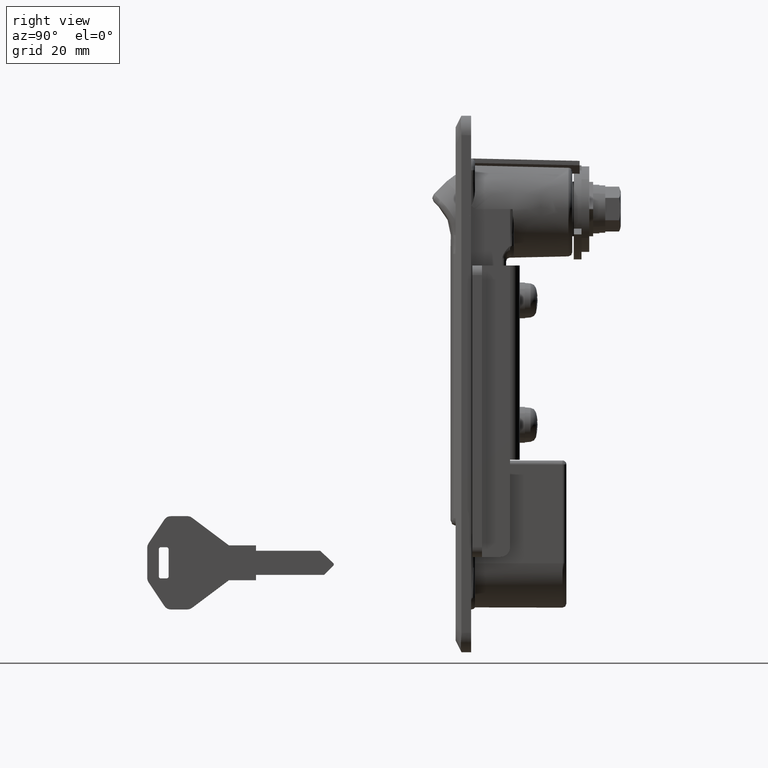
[diagram: clean part render]
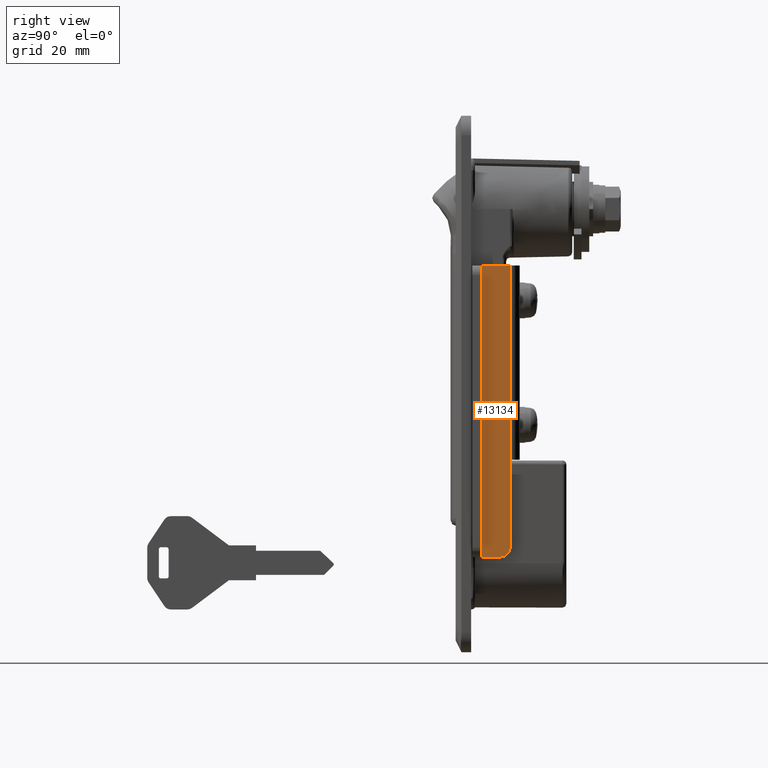
[diagram: same view with one face highlighted and labeled with its STEP entity id]
A machine part, right view. The second image highlights one B-rep face of the part: STEP entity #13134.
In plain terms, the highlighted face is a freeform B-spline surface patch.
Its self-contained STEP definition (entity closure, byte-faithful):
#12487=CARTESIAN_POINT('',(11.500000000000000,-15.500000000000000,-89.500000000000000));
#12488=VERTEX_POINT('',#12487);
#12489=CARTESIAN_POINT('',(14.0,-15.500000000000000,-87.0));
#12490=VERTEX_POINT('',#12489);
#12491=CARTESIAN_POINT('',(11.500000000000000,-15.500000000000000,-89.500000000000000));
#12492=CARTESIAN_POINT('',(11.847785370823960,-15.500000000000000,-89.500452092034067));
#12493=CARTESIAN_POINT('',(12.481449097983360,-15.500000000000000,-89.365510949278359));
#12494=CARTESIAN_POINT('',(13.171786452707600,-15.500000000000080,-88.904244273832617));
#12495=CARTESIAN_POINT('',(13.635454005515010,-15.499999999999950,-88.353034899611671));
#12496=CARTESIAN_POINT('',(13.927160013496451,-15.499999999999851,-87.736280419871065));
#12497=CARTESIAN_POINT('',(14.000098776672781,-15.500000000000210,-87.245443440579407));
#12498=CARTESIAN_POINT('',(14.0,-15.500000000000000,-87.0));
#12499=B_SPLINE_CURVE_WITH_KNOTS('',3,(#12491,#12492,#12493,#12494,#12495,#12496,#12497,#12498),.UNSPECIFIED.,.F.,.U.,(4,1,1,1,1,4),(0.000000307271683,1.043135946012944,1.902227440175011,2.454423626520331,3.190762531668670,3.927089360864137),.UNSPECIFIED.);
#12500=EDGE_CURVE('',#12488,#12490,#12499,.T.);
#12535=CARTESIAN_POINT('',(14.0,-15.500000000000000,-64.500000000000000));
#12536=VERTEX_POINT('',#12535);
#12537=CARTESIAN_POINT('',(14.0,-15.500000000000000,-87.0));
#12538=CARTESIAN_POINT('',(14.0,-15.500000000000000,-64.500000000000000));
#12539=QUASI_UNIFORM_CURVE('',1,(#12537,#12538),.UNSPECIFIED.,.F.,.U.);
#12540=EDGE_CURVE('',#12490,#12536,#12539,.T.);
#12876=CARTESIAN_POINT('',(6.800000000000000,-15.500000000000000,-14.500000000000000));
#12877=VERTEX_POINT('',#12876);
#12883=CARTESIAN_POINT('',(14.0,-15.500000000000000,-14.500000000000000));
#12884=VERTEX_POINT('',#12883);
#12885=CARTESIAN_POINT('',(6.800000000000000,-15.500000000000000,-14.500000000000000));
#12886=CARTESIAN_POINT('',(14.0,-15.500000000000000,-14.500000000000000));
#12887=QUASI_UNIFORM_CURVE('',1,(#12885,#12886),.UNSPECIFIED.,.F.,.U.);
#12888=EDGE_CURVE('',#12877,#12884,#12887,.T.);
#13103=CARTESIAN_POINT('',(14.0,-15.500000000000000,-64.500000000000000));
#13104=CARTESIAN_POINT('',(14.0,-15.500000000000000,-14.500000000000000));
#13105=QUASI_UNIFORM_CURVE('',1,(#13103,#13104),.UNSPECIFIED.,.F.,.U.);
#13106=EDGE_CURVE('',#12536,#12884,#13105,.T.);
#13111=CARTESIAN_POINT('',(6.440360216720342,-15.500000000000000,-10.753750145364551));
#13112=CARTESIAN_POINT('',(6.440360216720342,-15.500000000000000,-93.246251866292212));
#13113=CARTESIAN_POINT('',(14.359640169517760,-15.500000000000000,-10.753750145364551));
#13114=CARTESIAN_POINT('',(14.359640169517760,-15.500000000000000,-93.246251866292212));
#13115=B_SPLINE_SURFACE_WITH_KNOTS('',1,1,((#13111,#13113),(#13112,#13114)),.UNSPECIFIED.,.F.,.F.,.U.,(2,2),(2,2),(0.0,82.492501720927663),(0.0,7.919279952797416),.UNSPECIFIED.);
#13116=CARTESIAN_POINT('',(6.800000000000000,-15.500000000000000,-89.500000000000000));
#13117=VERTEX_POINT('',#13116);
#13118=CARTESIAN_POINT('',(6.800000000000000,-15.500000000000000,-89.500000000000000));
#13119=CARTESIAN_POINT('',(11.500000000000000,-15.500000000000000,-89.500000000000000));
#13120=QUASI_UNIFORM_CURVE('',1,(#13118,#13119),.UNSPECIFIED.,.F.,.U.);
#13121=EDGE_CURVE('',#13117,#12488,#13120,.T.);
#13122=ORIENTED_EDGE('',*,*,#13121,.T.);
#13123=ORIENTED_EDGE('',*,*,#12500,.T.);
#13124=ORIENTED_EDGE('',*,*,#12540,.T.);
#13125=ORIENTED_EDGE('',*,*,#13106,.T.);
#13126=ORIENTED_EDGE('',*,*,#12888,.F.);
#13127=CARTESIAN_POINT('',(6.800000000000000,-15.500000000000000,-89.500000000000000));
#13128=CARTESIAN_POINT('',(6.800000000000000,-15.500000000000000,-14.500000000000000));
#13129=QUASI_UNIFORM_CURVE('',1,(#13127,#13128),.UNSPECIFIED.,.F.,.U.);
#13130=EDGE_CURVE('',#13117,#12877,#13129,.T.);
#13131=ORIENTED_EDGE('',*,*,#13130,.F.);
#13132=EDGE_LOOP('',(#13122,#13123,#13124,#13125,#13126,#13131));
#13133=FACE_OUTER_BOUND('',#13132,.T.);
#13134=ADVANCED_FACE('',(#13133),#13115,.T.);